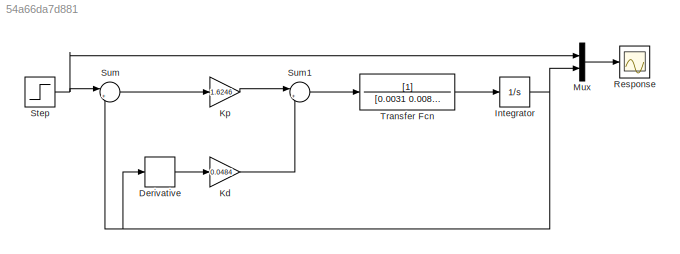
MODEL slx_54a66da7d881
KIND model
CONFIG AbsTol = auto
CONFIG FixedStep = auto
CONFIG MaxStep = auto
CONFIG MinStep = auto
CONFIG RelTol = 1e-3
CONFIG SampleTimeConstraint = Unconstrained
CONFIG Solver = VariableStepAuto
CONFIG SolverMode = Auto
CONFIG SolverName = VariableStepAuto
CONFIG StartTime = 0.0
CONFIG StopTime = 1
BLOCK [Derivative] Derivative
BLOCK [Integrator] Integrator
  Ports = [1, 1]
BLOCK [Gain] Kd
  Gain = 0.0484
  OutDataTypeStr = Inherit: Inherit via internal rule
  ParamDataTypeStr = Inherit: Inherit via internal rule
  SaturateOnIntegerOverflow = off
BLOCK [Gain] Kp
  Gain = 1.6246
  OutDataTypeStr = Inherit: Inherit via internal rule
  ParamDataTypeStr = Inherit: Inherit via internal rule
  SaturateOnIntegerOverflow = off
BLOCK [Mux] Mux
  DisplayOption = bar
  Inputs = 2
  Ports = [2, 1]
BLOCK [Scope] Response
  Ports = [1]
  ScopeSpecificationString = Simulink.scopes.TimeScopeBlockCfg('CurrentConfiguration', extmgr.ConfigurationSet(extmgr.Configuration('Core','General UI',true),extmgr.Configuration('Core','Source UI',true),extmgr.Configuration('Sources','WiredSimulink',true,'DataLoggingVariableName','step_data','DataLogging',true,'DataLoggingSaveFormat','Array'),extmgr.Configuration('Visuals','Time Domain',true,'SerializedDisplays',{struct('Min...<+1480ch>
BLOCK [Step] Step
  After = pi/18
  SampleTime = 0
  Time = 0
BLOCK [Sum] Sum
  IconShape = round
  InputSameDT = off
  Inputs = |+-
  OutDataTypeStr = Inherit: Inherit via internal rule
  Ports = [2, 1]
  SaturateOnIntegerOverflow = off
BLOCK [Sum] Sum1
  IconShape = round
  InputSameDT = off
  Inputs = |+-
  OutDataTypeStr = Inherit: Inherit via internal rule
  Ports = [2, 1]
  SaturateOnIntegerOverflow = off
BLOCK [TransferFcn] Transfer Fcn
  Denominator = [0.0031 0.0089]
LINE Derivative:1 -> Kd:1
NET Integrator:1 -> Derivative:1, Mux:2, Sum:2
LINE Kd:1 -> Sum1:2
LINE Kp:1 -> Sum1:1
LINE Mux:1 -> Response:1
NET Step:1 -> Mux:1, Sum:1
LINE Sum1:1 -> Transfer Fcn:1
LINE Sum:1 -> Kp:1
LINE Transfer Fcn:1 -> Integrator:1
note: NET lines group one-source signal fan-out (src -> all destinations, sorted); 1:1 wires keep LINE
